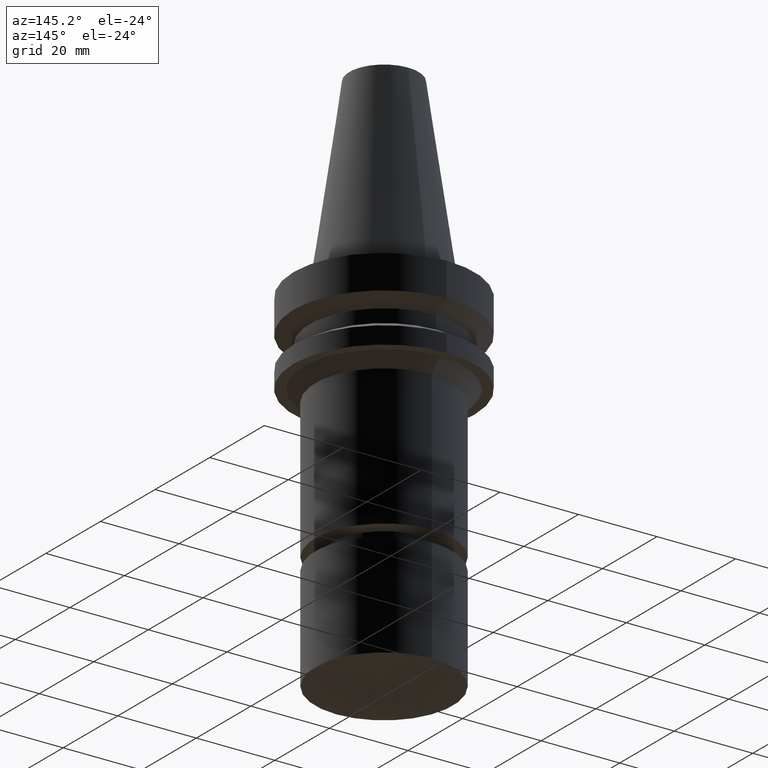
[diagram: clean part render]
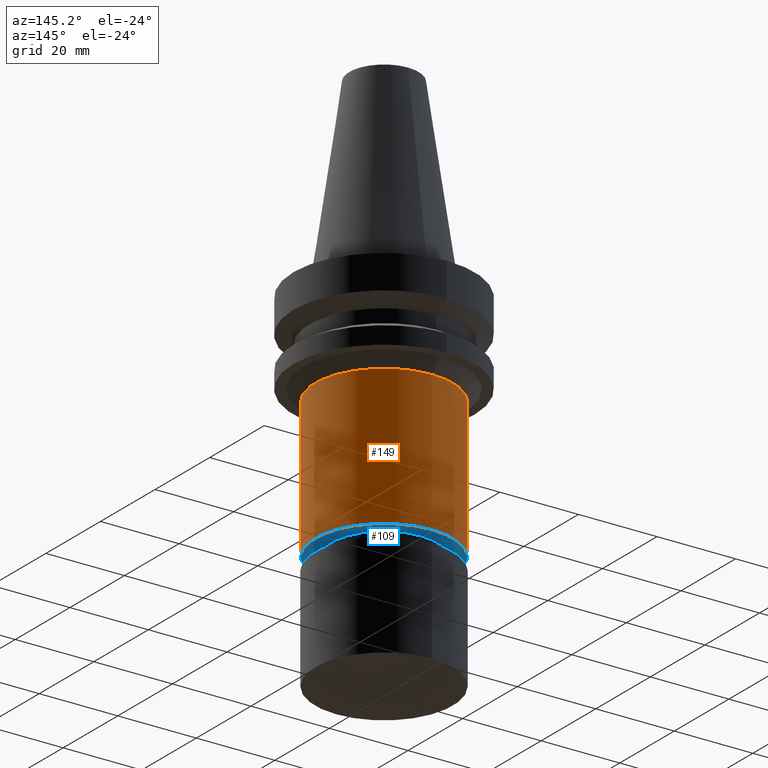
[diagram: same view with the hole feature highlighted: cylindrical wall and planar end face, labeled with their STEP entity ids]
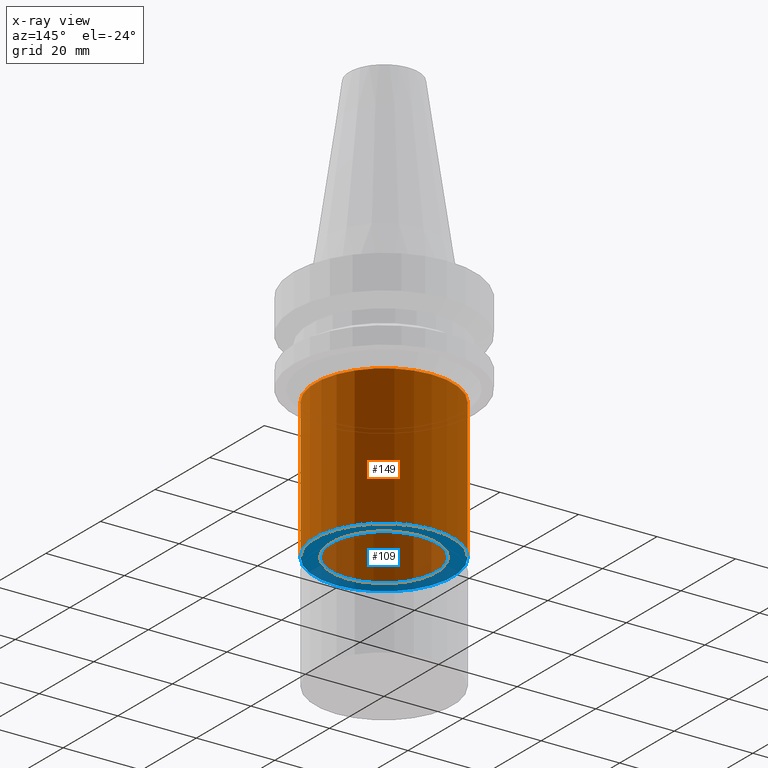
[diagram: x-ray of the same camera — body ghosted, the hole faces saturated]
A machine part, auxiliary view. The highlighted faces form one hole feature of diameter 35 mm: the cylindrical wall (entity #149, orange) and its adjacent planar end face (entity #109, blue) — they share a circular edge in the B-rep.
The next image is the same camera in x-ray (body ghosted, the hole faces saturated) — the bore reads through the body.
Wall:
#120=EDGE_CURVE('Unnamed[1]',#271,#271,#272,.T.);
#149=ADVANCED_FACE('Unnamed[1]',(#315,#316),#317,.T.);
#157=EDGE_CURVE('Unnamed[1]',#329,#329,#330,.T.);
#271=VERTEX_POINT('',#463);
#272=CIRCLE('',#464,17.4999999999999);
#315=FACE_BOUND('',#519,.T.);
#316=FACE_BOUND('',#520,.T.);
#317=CYLINDRICAL_SURFACE('',#521,17.4999999999984);
#329=VERTEX_POINT('',#536);
#330=CIRCLE('',#537,17.4999999999968);
#463=CARTESIAN_POINT('',(3.70455656742073E-015,17.4999999999999,-60.4999999999998));
#464=AXIS2_PLACEMENT_3D('',#658,#659,#660);
#519=EDGE_LOOP('',(#706));
#520=EDGE_LOOP('',(#707));
#521=AXIS2_PLACEMENT_3D('',#708,#709,#710);
#536=CARTESIAN_POINT('',(1.53080849893421E-015,17.4999999999968,-25.0000000000003));
#537=AXIS2_PLACEMENT_3D('',#723,#724,#725);
#658=CARTESIAN_POINT('',(3.70455656742073E-015,7.40911313484146E-015,-60.4999999999998));
#659=DIRECTION('',(6.12323399573677E-017,1.22464679914709E-016,-1.0));
#660=DIRECTION('',(-1.23259516440784E-032,1.0,1.22464679914709E-016));
#706=ORIENTED_EDGE('',*,*,#120,.F.);
#707=ORIENTED_EDGE('',*,*,#157,.T.);
#708=CARTESIAN_POINT('',(2.61768253317747E-015,5.23536506635494E-015,-42.75));
#709=DIRECTION('',(6.12323399573677E-017,1.2246467991472E-016,-1.0));
#710=DIRECTION('',(-1.23259516440795E-032,1.0,1.2246467991472E-016));
#723=CARTESIAN_POINT('',(1.53080849893421E-015,3.06161699786842E-015,-25.0000000000003));
#724=DIRECTION('',(6.12323399573677E-017,1.22464679914731E-016,-1.0));
#725=DIRECTION('',(-1.23259516440806E-032,1.0,1.22464679914731E-016));
End face:
#75=EDGE_CURVE('Unnamed[1]',#201,#201,#202,.T.);
#109=ADVANCED_FACE('Unnamed[1]',(#252,#253),#254,.T.);
#120=EDGE_CURVE('Unnamed[1]',#271,#271,#272,.T.);
#201=VERTEX_POINT('',#377);
#202=CIRCLE('',#378,13.4999999999908);
#252=FACE_BOUND('',#440,.T.);
#253=FACE_OUTER_BOUND('',#441,.T.);
#254=PLANE('',#442);
#271=VERTEX_POINT('',#463);
#272=CIRCLE('',#464,17.4999999999999);
#377=CARTESIAN_POINT('',(3.70455656742072E-015,13.4999999999908,-60.4999999999996));
#378=AXIS2_PLACEMENT_3D('',#580,#581,#582);
#440=EDGE_LOOP('',(#635));
#441=EDGE_LOOP('',(#636));
#442=AXIS2_PLACEMENT_3D('',#637,#638,#639);
#463=CARTESIAN_POINT('',(3.70455656742073E-015,17.4999999999999,-60.4999999999998));
#464=AXIS2_PLACEMENT_3D('',#658,#659,#660);
#580=CARTESIAN_POINT('',(3.70455656742072E-015,7.40911313484144E-015,-60.4999999999996));
#581=DIRECTION('',(6.12323399573677E-017,1.22464679914717E-016,-1.0));
#582=DIRECTION('',(-1.23259516440734E-032,1.0,1.22464679914717E-016));
#635=ORIENTED_EDGE('',*,*,#75,.F.);
#636=ORIENTED_EDGE('',*,*,#120,.T.);
#637=CARTESIAN_POINT('',(3.70455656742073E-015,15.4999999999954,-60.4999999999997));
#638=DIRECTION('',(6.12323399573677E-017,-4.96155268231789E-014,-1.0));
#639=DIRECTION('',(3.03324765287001E-030,1.0,-4.96155268231789E-014));
#658=CARTESIAN_POINT('',(3.70455656742073E-015,7.40911313484146E-015,-60.4999999999998));
#659=DIRECTION('',(6.12323399573677E-017,1.22464679914709E-016,-1.0));
#660=DIRECTION('',(-1.23259516440784E-032,1.0,1.22464679914709E-016));